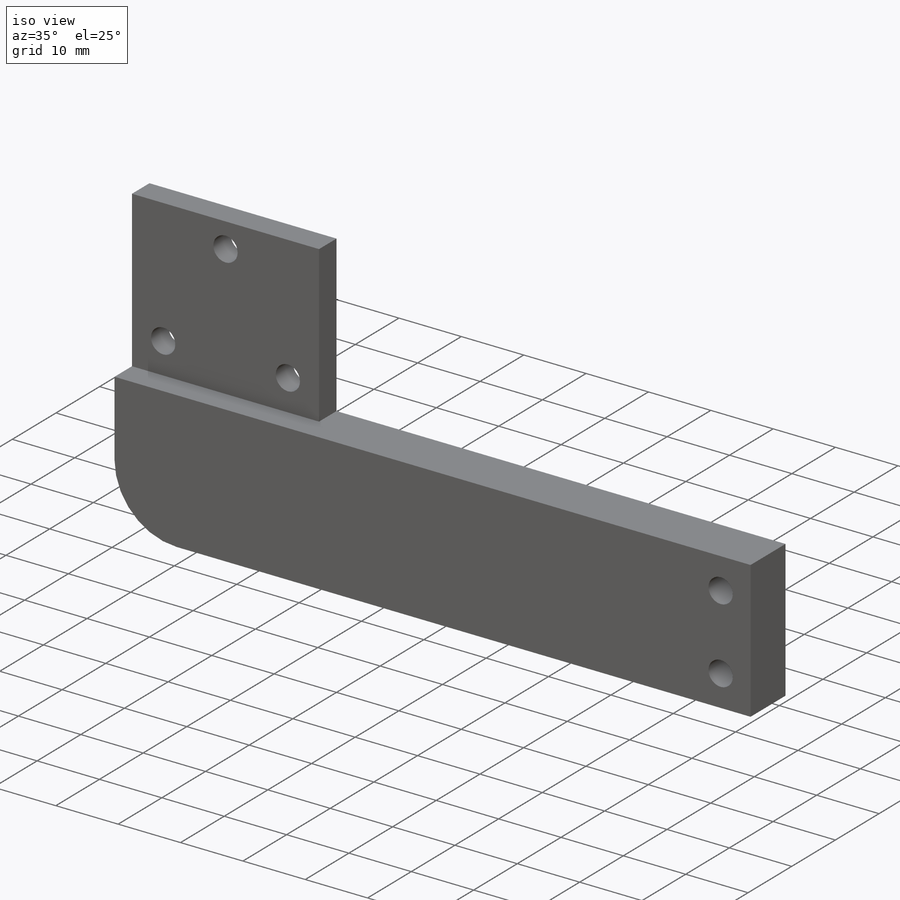
[diagram: iso view]
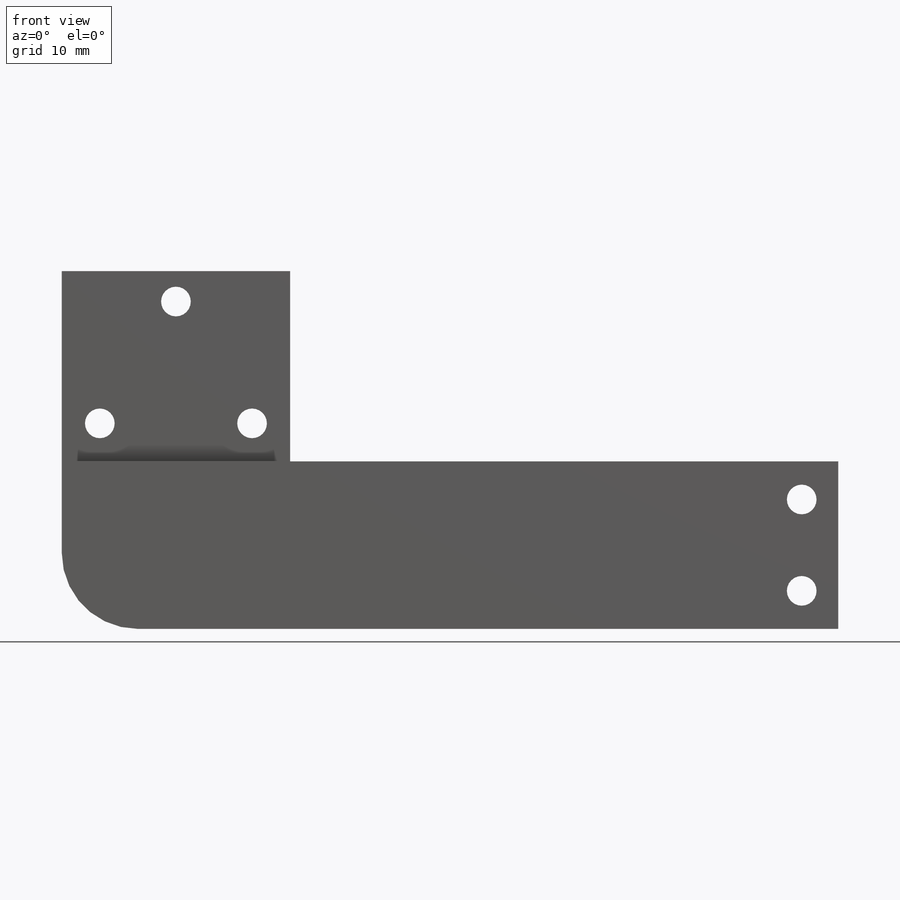
[diagram: front view]
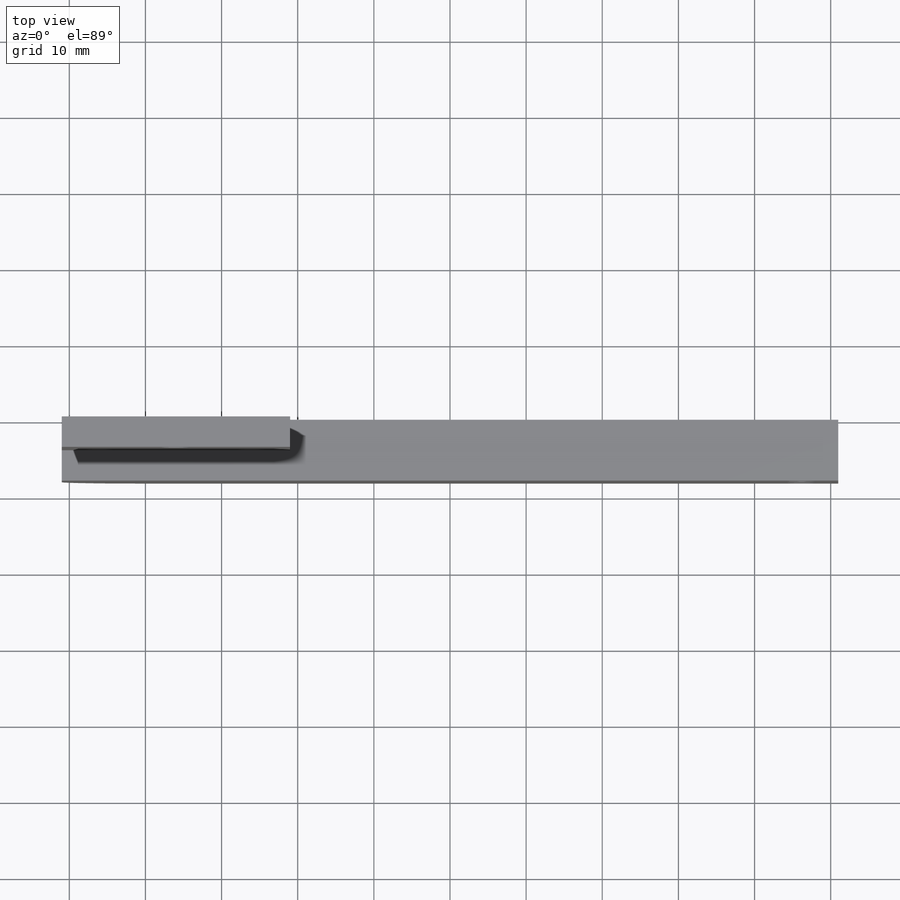
[diagram: top view]
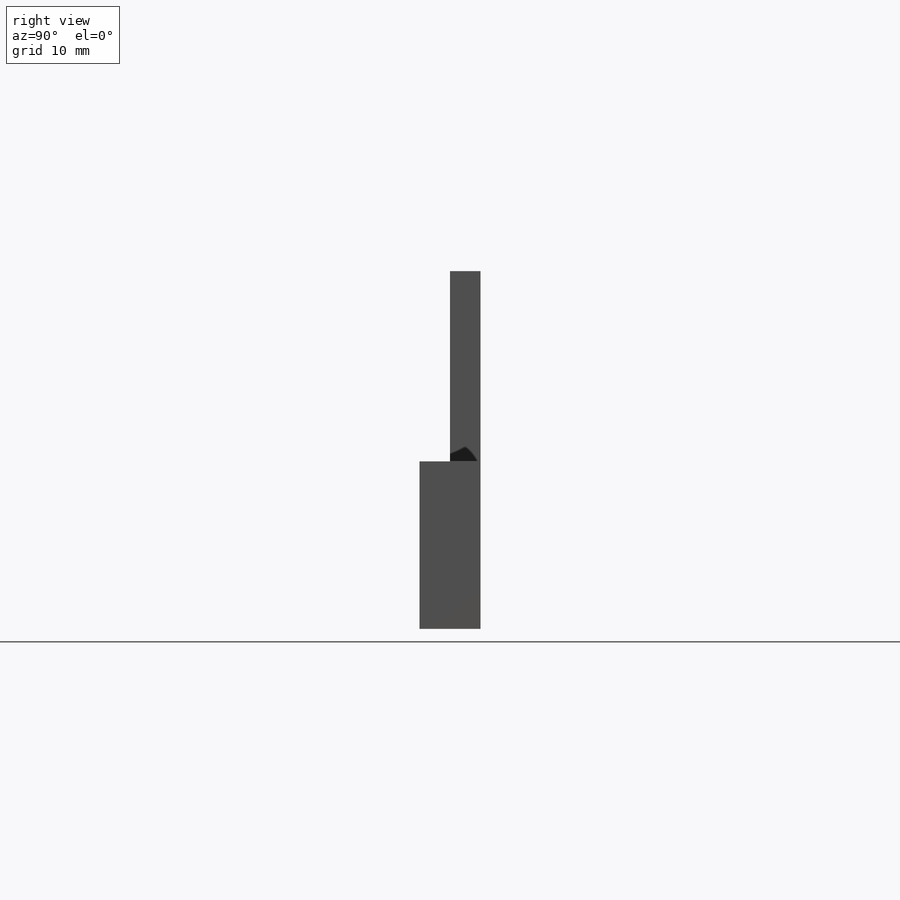
[diagram: right view]
SOLIDWORKS PART (.sldprt)
format: sldprt  version: not decoded by parser v0  size: 181,760 bytes
history: native  units: mm
features: sketch x7, extrude x2, hole x2, material x1, fillet x1, cut_extrude x1 (+14 scaffold rows collapsed)
feature tree (28):
  scaffold x14  (default folders/planes/origin — collapsed)
  material  "PLA Black"
  sketch  "Sketch1"  dims[D1=102.0mm D2=22.0mm]
  extrude  "Extrude1"  Depth=8mm
  hole  "Ø4.0 (4) Diameter Hole1"  Diameter=3.9mm Depth=15mm
  sketch  "3DSketch1"  dims[D1=4.8mm D2=12.0mm D3=5.0mm]
  sketch  "Sketch2"  dims[hole-wizard template sketch: 47 standard entries collapsed; hole parameters kept: c15.Hole Depth=15.0mm c15.D3=~14.816244mm c15.Drill Angle=180.0deg]
  sketch  "Sketch3"  dims[D1=25.0mm D2=30.0mm]
  extrude  "Extrude2"  Depth=8mm
  fillet  "Fillet1"  Radius=10mm
  hole  "Ø4.0 (4) Diameter Hole2"  Diameter=3.9mm Depth=15mm
  sketch  "3DSketch2"  dims[c1.D1=4.0mm c1.D2=~11.553041mm c2.D2=20.0mm c2.D3=16.0mm]
  sketch  "Sketch4"  dims[hole-wizard template sketch: 47 standard entries collapsed; hole parameters kept: c15.Hole Depth=15.0mm c15.D3=~14.816244mm c15.Drill Angle=180.0deg]
  sketch  "Sketch5"  dims[D1=25.0mm]
  cut_extrude  "Extrude3"  Depth=4mm
decode coverage: 13 of 13 modeling features carry decoded parameters
note: ~ marks probable driven/reference dimensions
note: suppression state not decoded; provenance and decode notes live in map.json
